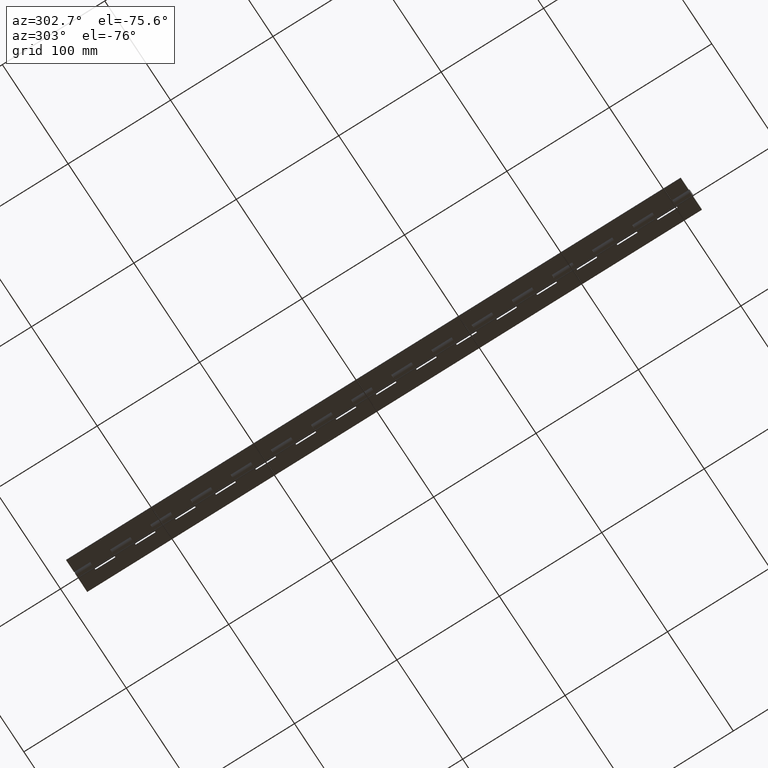
[diagram: clean part render]
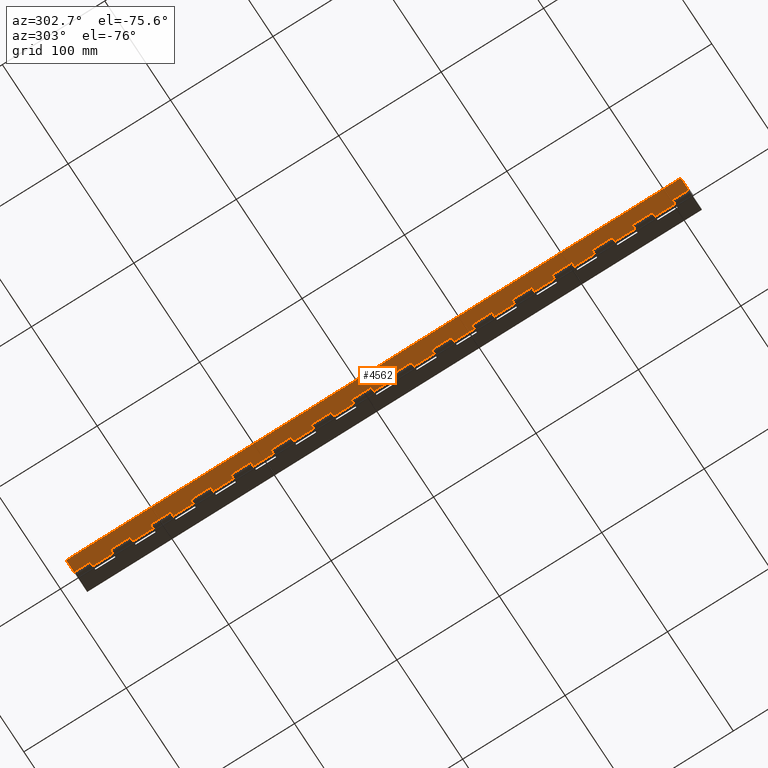
[diagram: same view with one face highlighted and labeled with its STEP entity id]
A machine part, auxiliary view. The second image highlights one B-rep face of the part: STEP entity #4562.
In plain terms, the highlighted planar face has unit normal (0, 0, 1).
Its self-contained STEP definition (entity closure, byte-faithful):
#11 = LINE ( 'NONE', #890, #4144 ) ;
#12 = CARTESIAN_POINT ( 'NONE',  ( 0.0000000000000000000, 509.6000000000000800, -3.350000000000000500 ) ) ;
#31 = VERTEX_POINT ( 'NONE', #4496 ) ;
#59 = DIRECTION ( 'NONE',  ( -0.0000000000000000000, -1.000000000000000000, -0.0000000000000000000 ) ) ;
#66 = CARTESIAN_POINT ( 'NONE',  ( 2.051283388571816900E-016, 584.2000000000000500, -3.350000000000000500 ) ) ;
#80 = ORIENTED_EDGE ( 'NONE', *, *, #2051, .T. ) ;
#115 = CARTESIAN_POINT ( 'NONE',  ( 0.0000000000000000000, 176.4000000000000100, -3.350000000000000500 ) ) ;
#126 = DIRECTION ( 'NONE',  ( 1.000000000000000000, 0.0000000000000000000, -0.0000000000000000000 ) ) ;
#140 = VERTEX_POINT ( 'NONE', #3898 ) ;
#158 = EDGE_CURVE ( 'NONE', #3872, #567, #1415, .T. ) ;
#159 = ORIENTED_EDGE ( 'NONE', *, *, #6578, .T. ) ;
#163 = DIRECTION ( 'NONE',  ( -1.000000000000000000, -0.0000000000000000000, 0.0000000000000000000 ) ) ;
#175 = DIRECTION ( 'NONE',  ( 1.327594496921025700E-016, -1.000000000000000000, 0.0000000000000000000 ) ) ;
#176 = CARTESIAN_POINT ( 'NONE',  ( 0.0000000000000000000, 0.0000000000000000000, -3.350000000000000500 ) ) ;
#190 = CARTESIAN_POINT ( 'NONE',  ( 0.0000000000000000000, 431.2000000000001000, -3.350000000000000500 ) ) ;
#198 = CARTESIAN_POINT ( 'NONE',  ( -3.999999824594459200, 19.60000000000000100, -3.350000000000000500 ) ) ;
#202 = ORIENTED_EDGE ( 'NONE', *, *, #1544, .T. ) ;
#221 = ORIENTED_EDGE ( 'NONE', *, *, #5859, .T. ) ;
#232 = LINE ( 'NONE', #4959, #4205 ) ;
#267 = CARTESIAN_POINT ( 'NONE',  ( -3.999999824594459200, 58.80000000000000400, -3.350000000000000500 ) ) ;
#277 = VECTOR ( 'NONE', #891, 1000.000000000000000 ) ;
#280 = DIRECTION ( 'NONE',  ( 1.327594496921025700E-016, -1.000000000000000000, 0.0000000000000000000 ) ) ;
#291 = VECTOR ( 'NONE', #1523, 1000.000000000000000 ) ;
#297 = ORIENTED_EDGE ( 'NONE', *, *, #2676, .T. ) ;
#320 = VECTOR ( 'NONE', #5203, 1000.000000000000000 ) ;
#326 = CARTESIAN_POINT ( 'NONE',  ( -15.99999982459446300, -15.80000000000000100, -3.350000000000000500 ) ) ;
#329 = EDGE_CURVE ( 'NONE', #5534, #6255, #1657, .T. ) ;
#333 = DIRECTION ( 'NONE',  ( -0.0000000000000000000, -1.000000000000000000, -0.0000000000000000000 ) ) ;
#335 = CARTESIAN_POINT ( 'NONE',  ( -3.999999824594459200, 294.0000000000000600, -3.350000000000000500 ) ) ;
#357 = VERTEX_POINT ( 'NONE', #1597 ) ;
#360 = EDGE_CURVE ( 'NONE', #1417, #5745, #1161, .T. ) ;
#383 = VECTOR ( 'NONE', #1357, 1000.000000000000000 ) ;
#398 = ORIENTED_EDGE ( 'NONE', *, *, #5420, .T. ) ;
#411 = CARTESIAN_POINT ( 'NONE',  ( 0.0000000000000000000, 313.6000000000000200, -3.350000000000000500 ) ) ;
#413 = VECTOR ( 'NONE', #1122, 1000.000000000000000 ) ;
#454 = VERTEX_POINT ( 'NONE', #2677 ) ;
#456 = CARTESIAN_POINT ( 'NONE',  ( 0.0000000000000000000, 98.00000000000002800, -3.350000000000000500 ) ) ;
#463 = CARTESIAN_POINT ( 'NONE',  ( -3.999999824594459200, 19.60000000000000100, -3.350000000000000500 ) ) ;
#524 = VERTEX_POINT ( 'NONE', #3594 ) ;
#529 = ORIENTED_EDGE ( 'NONE', *, *, #2528, .T. ) ;
#531 = DIRECTION ( 'NONE',  ( -1.000000000000000000, -0.0000000000000000000, 0.0000000000000000000 ) ) ;
#543 = CARTESIAN_POINT ( 'NONE',  ( -3.999999824594459200, 411.6000000000000800, -3.350000000000000500 ) ) ;
#560 = VECTOR ( 'NONE', #5678, 1000.000000000000000 ) ;
#567 = VERTEX_POINT ( 'NONE', #3196 ) ;
#571 = DIRECTION ( 'NONE',  ( -1.000000000000000000, 0.0000000000000000000, 0.0000000000000000000 ) ) ;
#619 = LINE ( 'NONE', #2435, #3235 ) ;
#625 = EDGE_CURVE ( 'NONE', #885, #2555, #2138, .T. ) ;
#643 = DIRECTION ( 'NONE',  ( 1.327594496921025700E-016, -1.000000000000000000, 0.0000000000000000000 ) ) ;
#656 = CARTESIAN_POINT ( 'NONE',  ( 0.0000000000000000000, 39.20000000000000300, -3.350000000000000500 ) ) ;
#679 = CARTESIAN_POINT ( 'NONE',  ( -3.999999824594459200, 568.3999999999999800, -3.350000000000000500 ) ) ;
#682 = CARTESIAN_POINT ( 'NONE',  ( -3.999999824594459200, 411.6000000000000800, -3.350000000000000500 ) ) ;
#700 = VECTOR ( 'NONE', #643, 1000.000000000000000 ) ;
#719 = EDGE_CURVE ( 'NONE', #4245, #2703, #5636, .T. ) ;
#733 = CARTESIAN_POINT ( 'NONE',  ( -3.999999824594461900, 584.2000000000000500, -3.350000000000000500 ) ) ;
#753 = EDGE_CURVE ( 'NONE', #2283, #3556, #1324, .T. ) ;
#820 = DIRECTION ( 'NONE',  ( 1.000000000000000000, 0.0000000000000000000, 0.0000000000000000000 ) ) ;
#825 = ORIENTED_EDGE ( 'NONE', *, *, #2624, .T. ) ;
#839 = ORIENTED_EDGE ( 'NONE', *, *, #1232, .T. ) ;
#849 = VECTOR ( 'NONE', #3921, 1000.000000000000000 ) ;
#857 = LINE ( 'NONE', #2228, #6231 ) ;
#865 = EDGE_LOOP ( 'NONE', ( #2234, #297, #2076, #2798, #4185, #900, #3608, #6628, #398, #6485, #3256, #2976, #5659, #2449, #2967, #839, #5577, #1983, #867, #3285, #5237, #1637, #1065, #2984, #5663, #1393, #6084, #529, #2148, #159, #3222, #80, #6464, #1979, #4478, #3776, #202, #6157, #5330, #4105, #6405, #4566, #221, #825, #6151, #5991, #1711, #3567, #1913, #6092, #3068, #5428, #3833, #1092, #4764, #1108, #4327, #1752, #3357, #3091, #5472, #1678, #5904, #953 ) ) ;
#867 = ORIENTED_EDGE ( 'NONE', *, *, #1692, .T. ) ;
#870 = LINE ( 'NONE', #4577, #6082 ) ;
#876 = DIRECTION ( 'NONE',  ( -0.0000000000000000000, -1.000000000000000000, -0.0000000000000000000 ) ) ;
#885 = VERTEX_POINT ( 'NONE', #1661 ) ;
#886 = DIRECTION ( 'NONE',  ( 1.327594496921025700E-016, -1.000000000000000000, 0.0000000000000000000 ) ) ;
#890 = CARTESIAN_POINT ( 'NONE',  ( -3.999999824594461900, 78.40000000000000600, -3.350000000000000500 ) ) ;
#891 = DIRECTION ( 'NONE',  ( 1.327594496921025700E-016, -1.000000000000000000, 0.0000000000000000000 ) ) ;
#900 = ORIENTED_EDGE ( 'NONE', *, *, #625, .T. ) ;
#924 = CARTESIAN_POINT ( 'NONE',  ( 0.0000000000000000000, 568.3999999999999800, -3.350000000000000500 ) ) ;
#946 = VECTOR ( 'NONE', #4701, 1000.000000000000000 ) ;
#953 = ORIENTED_EDGE ( 'NONE', *, *, #4074, .F. ) ;
#964 = VECTOR ( 'NONE', #1337, 1000.000000000000000 ) ;
#965 = DIRECTION ( 'NONE',  ( 1.000000000000000000, 0.0000000000000000000, 0.0000000000000000000 ) ) ;
#970 = CARTESIAN_POINT ( 'NONE',  ( 0.0000000000000000000, 392.0000000000000600, -3.350000000000000500 ) ) ;
#1045 = DIRECTION ( 'NONE',  ( -1.000000000000000000, -0.0000000000000000000, 0.0000000000000000000 ) ) ;
#1051 = CARTESIAN_POINT ( 'NONE',  ( -3.999999824594461900, 235.2000000000000500, -3.350000000000000500 ) ) ;
#1065 = ORIENTED_EDGE ( 'NONE', *, *, #360, .T. ) ;
#1074 = DIRECTION ( 'NONE',  ( 1.000000000000000000, 0.0000000000000000000, 0.0000000000000000000 ) ) ;
#1092 = ORIENTED_EDGE ( 'NONE', *, *, #4757, .T. ) ;
#1095 = VERTEX_POINT ( 'NONE', #2050 ) ;
#1107 = LINE ( 'NONE', #2961, #6635 ) ;
#1108 = ORIENTED_EDGE ( 'NONE', *, *, #329, .T. ) ;
#1110 = CARTESIAN_POINT ( 'NONE',  ( -3.999999824594459200, 333.2000000000000500, -3.350000000000000500 ) ) ;
#1122 = DIRECTION ( 'NONE',  ( -0.0000000000000000000, -1.000000000000000000, -0.0000000000000000000 ) ) ;
#1161 = LINE ( 'NONE', #6295, #3764 ) ;
#1165 = EDGE_CURVE ( 'NONE', #4160, #2283, #5461, .T. ) ;
#1168 = CARTESIAN_POINT ( 'NONE',  ( 0.0000000000000000000, 568.3999999999999800, -3.350000000000000500 ) ) ;
#1195 = DIRECTION ( 'NONE',  ( -1.000000000000000000, -0.0000000000000000000, 0.0000000000000000000 ) ) ;
#1197 = VERTEX_POINT ( 'NONE', #3075 ) ;
#1212 = CARTESIAN_POINT ( 'NONE',  ( -3.999999824594461900, 470.4000000000000900, -3.350000000000000500 ) ) ;
#1216 = CARTESIAN_POINT ( 'NONE',  ( 0.0000000000000000000, 274.4000000000000300, -3.350000000000000500 ) ) ;
#1222 = CARTESIAN_POINT ( 'NONE',  ( -3.999999824594461900, 235.2000000000000500, -3.350000000000000500 ) ) ;
#1232 = EDGE_CURVE ( 'NONE', #4094, #3849, #6352, .T. ) ;
#1258 = CARTESIAN_POINT ( 'NONE',  ( 0.0000000000000000000, 58.79999999999996200, -3.350000000000000500 ) ) ;
#1260 = VERTEX_POINT ( 'NONE', #5863 ) ;
#1263 = VECTOR ( 'NONE', #4414, 1000.000000000000000 ) ;
#1264 = VERTEX_POINT ( 'NONE', #456 ) ;
#1306 = CARTESIAN_POINT ( 'NONE',  ( -3.999999824594461000, -15.80000000000000100, -3.350000000000000500 ) ) ;
#1324 = LINE ( 'NONE', #2162, #2549 ) ;
#1326 = DIRECTION ( 'NONE',  ( 1.000000000000000000, 0.0000000000000000000, 0.0000000000000000000 ) ) ;
#1337 = DIRECTION ( 'NONE',  ( -0.0000000000000000000, -1.000000000000000000, -0.0000000000000000000 ) ) ;
#1357 = DIRECTION ( 'NONE',  ( -0.0000000000000000000, -1.000000000000000000, -0.0000000000000000000 ) ) ;
#1369 = CARTESIAN_POINT ( 'NONE',  ( -3.999999824594459200, 176.4000000000000300, -3.350000000000000500 ) ) ;
#1393 = ORIENTED_EDGE ( 'NONE', *, *, #6245, .T. ) ;
#1399 = CARTESIAN_POINT ( 'NONE',  ( -3.999999824594461900, 392.0000000000000600, -3.350000000000000500 ) ) ;
#1415 = LINE ( 'NONE', #5464, #3683 ) ;
#1417 = VERTEX_POINT ( 'NONE', #6541 ) ;
#1449 = VECTOR ( 'NONE', #4977, 1000.000000000000000 ) ;
#1465 = DIRECTION ( 'NONE',  ( -1.000000000000000000, -0.0000000000000000000, 0.0000000000000000000 ) ) ;
#1474 = VERTEX_POINT ( 'NONE', #4635 ) ;
#1484 = VECTOR ( 'NONE', #1326, 1000.000000000000000 ) ;
#1511 = VERTEX_POINT ( 'NONE', #6119 ) ;
#1523 = DIRECTION ( 'NONE',  ( -0.0000000000000000000, -1.000000000000000000, -0.0000000000000000000 ) ) ;
#1542 = CARTESIAN_POINT ( 'NONE',  ( -3.999999824594459200, 137.2000000000000200, -3.350000000000000500 ) ) ;
#1544 = EDGE_CURVE ( 'NONE', #5453, #2913, #870, .T. ) ;
#1573 = VERTEX_POINT ( 'NONE', #3580 ) ;
#1588 = EDGE_CURVE ( 'NONE', #567, #454, #5766, .T. ) ;
#1597 = CARTESIAN_POINT ( 'NONE',  ( -3.999999824594459200, 98.00000000000001400, -3.350000000000000500 ) ) ;
#1603 = VECTOR ( 'NONE', #3417, 1000.000000000000000 ) ;
#1637 = ORIENTED_EDGE ( 'NONE', *, *, #4091, .T. ) ;
#1656 = LINE ( 'NONE', #3130, #6689 ) ;
#1657 = LINE ( 'NONE', #6498, #6690 ) ;
#1661 = CARTESIAN_POINT ( 'NONE',  ( -3.999999824594461900, 548.8000000000000700, -3.350000000000000500 ) ) ;
#1664 = VERTEX_POINT ( 'NONE', #5718 ) ;
#1673 = VECTOR ( 'NONE', #1074, 1000.000000000000000 ) ;
#1678 = ORIENTED_EDGE ( 'NONE', *, *, #4475, .T. ) ;
#1688 = CARTESIAN_POINT ( 'NONE',  ( -3.999999824594461900, 352.8000000000000700, -3.350000000000000500 ) ) ;
#1692 = EDGE_CURVE ( 'NONE', #1870, #1875, #3880, .T. ) ;
#1703 = EDGE_CURVE ( 'NONE', #5489, #3057, #5261, .T. ) ;
#1706 = EDGE_CURVE ( 'NONE', #2555, #2427, #3712, .T. ) ;
#1711 = ORIENTED_EDGE ( 'NONE', *, *, #6650, .T. ) ;
#1752 = ORIENTED_EDGE ( 'NONE', *, *, #2724, .T. ) ;
#1755 = VERTEX_POINT ( 'NONE', #3681 ) ;
#1764 = CARTESIAN_POINT ( 'NONE',  ( -3.999999824594459200, 137.2000000000000200, -3.350000000000000500 ) ) ;
#1804 = VECTOR ( 'NONE', #876, 1000.000000000000000 ) ;
#1807 = DIRECTION ( 'NONE',  ( -1.000000000000000000, -0.0000000000000000000, 0.0000000000000000000 ) ) ;
#1845 = LINE ( 'NONE', #4164, #3403 ) ;
#1870 = VERTEX_POINT ( 'NONE', #682 ) ;
#1875 = VERTEX_POINT ( 'NONE', #2219 ) ;
#1880 = EDGE_CURVE ( 'NONE', #1664, #3595, #4128, .T. ) ;
#1881 = VERTEX_POINT ( 'NONE', #5866 ) ;
#1887 = VERTEX_POINT ( 'NONE', #4810 ) ;
#1913 = ORIENTED_EDGE ( 'NONE', *, *, #3274, .T. ) ;
#1914 = CARTESIAN_POINT ( 'NONE',  ( -15.99999982459446300, 431.2000000000001000, -3.350000000000000500 ) ) ;
#1923 = CARTESIAN_POINT ( 'NONE',  ( 0.0000000000000000000, 450.8000000000000700, -3.350000000000000500 ) ) ;
#1976 = EDGE_CURVE ( 'NONE', #1755, #5661, #5918, .T. ) ;
#1979 = ORIENTED_EDGE ( 'NONE', *, *, #1588, .T. ) ;
#1982 = CARTESIAN_POINT ( 'NONE',  ( 0.0000000000000000000, 568.3999999999999800, -3.350000000000000500 ) ) ;
#1983 = ORIENTED_EDGE ( 'NONE', *, *, #2950, .T. ) ;
#2018 = CARTESIAN_POINT ( 'NONE',  ( -3.999999824594463700, 0.0000000000000000000, -3.350000000000000500 ) ) ;
#2022 = EDGE_CURVE ( 'NONE', #1573, #4495, #5585, .T. ) ;
#2050 = CARTESIAN_POINT ( 'NONE',  ( -3.999999824594459200, 58.80000000000000400, -3.350000000000000500 ) ) ;
#2051 = EDGE_CURVE ( 'NONE', #1197, #3872, #232, .T. ) ;
#2071 = LINE ( 'NONE', #3415, #849 ) ;
#2076 = ORIENTED_EDGE ( 'NONE', *, *, #6705, .T. ) ;
#2084 = VERTEX_POINT ( 'NONE', #6063 ) ;
#2089 = DIRECTION ( 'NONE',  ( 1.000000000000000000, 0.0000000000000000000, 0.0000000000000000000 ) ) ;
#2094 = EDGE_CURVE ( 'NONE', #1887, #3469, #1107, .T. ) ;
#2095 = CARTESIAN_POINT ( 'NONE',  ( -3.999999824594461900, 196.0000000000000300, -3.350000000000000500 ) ) ;
#2110 = CARTESIAN_POINT ( 'NONE',  ( -3.999999824594459200, 568.3999999999999800, -3.350000000000000500 ) ) ;
#2138 = LINE ( 'NONE', #4398, #4750 ) ;
#2148 = ORIENTED_EDGE ( 'NONE', *, *, #2179, .T. ) ;
#2162 = CARTESIAN_POINT ( 'NONE',  ( -3.999999824594463700, 0.0000000000000000000, -3.350000000000000500 ) ) ;
#2179 = EDGE_CURVE ( 'NONE', #6537, #1881, #5503, .T. ) ;
#2212 = VERTEX_POINT ( 'NONE', #115 ) ;
#2219 = CARTESIAN_POINT ( 'NONE',  ( 0.0000000000000000000, 411.6000000000000800, -3.350000000000000500 ) ) ;
#2222 = VECTOR ( 'NONE', #571, 1000.000000000000000 ) ;
#2228 = CARTESIAN_POINT ( 'NONE',  ( 0.0000000000000000000, 568.3999999999999800, -3.350000000000000500 ) ) ;
#2234 = ORIENTED_EDGE ( 'NONE', *, *, #3343, .F. ) ;
#2235 = VECTOR ( 'NONE', #280, 1000.000000000000000 ) ;
#2259 = EDGE_CURVE ( 'NONE', #2377, #5510, #5001, .T. ) ;
#2264 = VECTOR ( 'NONE', #3687, 1000.000000000000000 ) ;
#2274 = EDGE_CURVE ( 'NONE', #3469, #140, #857, .T. ) ;
#2283 = VERTEX_POINT ( 'NONE', #176 ) ;
#2290 = VERTEX_POINT ( 'NONE', #679 ) ;
#2298 = CARTESIAN_POINT ( 'NONE',  ( -3.999999824594461900, 431.2000000000001000, -3.350000000000000500 ) ) ;
#2322 = LINE ( 'NONE', #6569, #3388 ) ;
#2327 = VERTEX_POINT ( 'NONE', #198 ) ;
#2356 = DIRECTION ( 'NONE',  ( -1.000000000000000000, -0.0000000000000000000, 0.0000000000000000000 ) ) ;
#2377 = VERTEX_POINT ( 'NONE', #4902 ) ;
#2388 = LINE ( 'NONE', #66, #2222 ) ;
#2396 = CARTESIAN_POINT ( 'NONE',  ( -3.999999824594459200, 176.4000000000000300, -3.350000000000000500 ) ) ;
#2404 = EDGE_CURVE ( 'NONE', #1095, #5534, #2659, .T. ) ;
#2410 = LINE ( 'NONE', #1542, #6552 ) ;
#2427 = VERTEX_POINT ( 'NONE', #4440 ) ;
#2433 = VECTOR ( 'NONE', #6262, 1000.000000000000000 ) ;
#2435 = CARTESIAN_POINT ( 'NONE',  ( 0.0000000000000000000, 568.3999999999999800, -3.350000000000000500 ) ) ;
#2449 = ORIENTED_EDGE ( 'NONE', *, *, #5940, .T. ) ;
#2486 = CARTESIAN_POINT ( 'NONE',  ( -3.999999824594461900, 313.6000000000000200, -3.350000000000000500 ) ) ;
#2497 = EDGE_CURVE ( 'NONE', #1264, #524, #2322, .T. ) ;
#2505 = VECTOR ( 'NONE', #5204, 1000.000000000000000 ) ;
#2511 = EDGE_CURVE ( 'NONE', #5745, #6060, #619, .T. ) ;
#2528 = EDGE_CURVE ( 'NONE', #4960, #6537, #5985, .T. ) ;
#2535 = EDGE_CURVE ( 'NONE', #31, #4094, #4441, .T. ) ;
#2539 = LINE ( 'NONE', #463, #5126 ) ;
#2549 = VECTOR ( 'NONE', #2680, 1000.000000000000000 ) ;
#2555 = VERTEX_POINT ( 'NONE', #4203 ) ;
#2558 = CARTESIAN_POINT ( 'NONE',  ( 0.0000000000000000000, 352.8000000000000700, -3.350000000000000500 ) ) ;
#2616 = DIRECTION ( 'NONE',  ( 1.646889375927348500E-016, -1.000000000000000000, 0.0000000000000000000 ) ) ;
#2624 = EDGE_CURVE ( 'NONE', #2212, #4114, #3951, .T. ) ;
#2635 = CARTESIAN_POINT ( 'NONE',  ( 0.0000000000000000000, 568.3999999999999800, -3.350000000000000500 ) ) ;
#2659 = LINE ( 'NONE', #267, #1263 ) ;
#2667 = VERTEX_POINT ( 'NONE', #3878 ) ;
#2676 = EDGE_CURVE ( 'NONE', #4664, #2290, #4993, .T. ) ;
#2677 = CARTESIAN_POINT ( 'NONE',  ( -3.999999824594459200, 254.8000000000000400, -3.350000000000000500 ) ) ;
#2680 = DIRECTION ( 'NONE',  ( -1.000000000000000000, -0.0000000000000000000, -0.0000000000000000000 ) ) ;
#2684 = VECTOR ( 'NONE', #163, 1000.000000000000000 ) ;
#2685 = CARTESIAN_POINT ( 'NONE',  ( 0.0000000000000000000, 568.3999999999999800, -3.350000000000000500 ) ) ;
#2703 = VERTEX_POINT ( 'NONE', #1306 ) ;
#2724 = EDGE_CURVE ( 'NONE', #4169, #2327, #2071, .T. ) ;
#2748 = VECTOR ( 'NONE', #1465, 1000.000000000000000 ) ;
#2757 = CARTESIAN_POINT ( 'NONE',  ( -15.99999982459446300, 509.6000000000000800, -3.350000000000000500 ) ) ;
#2764 = EDGE_CURVE ( 'NONE', #3382, #5453, #5908, .T. ) ;
#2768 = EDGE_CURVE ( 'NONE', #357, #1264, #5746, .T. ) ;
#2791 = CARTESIAN_POINT ( 'NONE',  ( -3.999999824594461900, 196.0000000000000300, -3.350000000000000500 ) ) ;
#2798 = ORIENTED_EDGE ( 'NONE', *, *, #4999, .T. ) ;
#2834 = LINE ( 'NONE', #6101, #5423 ) ;
#2891 = LINE ( 'NONE', #3107, #4096 ) ;
#2894 = CARTESIAN_POINT ( 'NONE',  ( 0.0000000000000000000, 568.3999999999999800, -3.350000000000000500 ) ) ;
#2913 = VERTEX_POINT ( 'NONE', #1222 ) ;
#2950 = EDGE_CURVE ( 'NONE', #5325, #1870, #6054, .T. ) ;
#2961 = CARTESIAN_POINT ( 'NONE',  ( -3.999999824594459200, 215.6000000000000500, -3.350000000000000500 ) ) ;
#2967 = ORIENTED_EDGE ( 'NONE', *, *, #2535, .T. ) ;
#2970 = DIRECTION ( 'NONE',  ( -0.0000000000000000000, -1.000000000000000000, -0.0000000000000000000 ) ) ;
#2976 = ORIENTED_EDGE ( 'NONE', *, *, #3216, .T. ) ;
#2984 = ORIENTED_EDGE ( 'NONE', *, *, #2511, .T. ) ;
#3033 = CARTESIAN_POINT ( 'NONE',  ( -15.99999982459446300, 196.0000000000000600, -3.350000000000000500 ) ) ;
#3054 = VECTOR ( 'NONE', #5667, 1000.000000000000000 ) ;
#3057 = VERTEX_POINT ( 'NONE', #1369 ) ;
#3068 = ORIENTED_EDGE ( 'NONE', *, *, #2768, .T. ) ;
#3075 = CARTESIAN_POINT ( 'NONE',  ( 0.0000000000000000000, 294.0000000000000600, -3.350000000000000500 ) ) ;
#3091 = ORIENTED_EDGE ( 'NONE', *, *, #1165, .T. ) ;
#3094 = CARTESIAN_POINT ( 'NONE',  ( -3.999999824594461900, 274.4000000000000300, -3.350000000000000500 ) ) ;
#3107 = CARTESIAN_POINT ( 'NONE',  ( -15.99999982459446300, 352.8000000000000700, -3.350000000000000500 ) ) ;
#3130 = CARTESIAN_POINT ( 'NONE',  ( -15.99999982459446300, 117.6000000000000400, -3.350000000000000500 ) ) ;
#3138 = CARTESIAN_POINT ( 'NONE',  ( -15.99999982459446300, 78.40000000000002000, -3.350000000000000500 ) ) ;
#3170 = LINE ( 'NONE', #1914, #5763 ) ;
#3188 = FACE_OUTER_BOUND ( 'NONE', #865, .T. ) ;
#3189 = CARTESIAN_POINT ( 'NONE',  ( -3.999999824594459200, 254.8000000000000400, -3.350000000000000500 ) ) ;
#3191 = EDGE_CURVE ( 'NONE', #2427, #4466, #5808, .T. ) ;
#3196 = CARTESIAN_POINT ( 'NONE',  ( -3.999999824594461900, 274.4000000000000300, -3.350000000000000500 ) ) ;
#3205 = LINE ( 'NONE', #4526, #1804 ) ;
#3216 = EDGE_CURVE ( 'NONE', #3911, #1755, #4425, .T. ) ;
#3222 = ORIENTED_EDGE ( 'NONE', *, *, #3542, .T. ) ;
#3235 = VECTOR ( 'NONE', #2970, 1000.000000000000000 ) ;
#3243 = DIRECTION ( 'NONE',  ( 0.0000000000000000000, 0.0000000000000000000, 1.000000000000000000 ) ) ;
#3256 = ORIENTED_EDGE ( 'NONE', *, *, #5369, .T. ) ;
#3257 = EDGE_CURVE ( 'NONE', #6060, #2084, #2891, .T. ) ;
#3274 = EDGE_CURVE ( 'NONE', #3595, #6269, #1656, .T. ) ;
#3285 = ORIENTED_EDGE ( 'NONE', *, *, #5327, .T. ) ;
#3289 = CARTESIAN_POINT ( 'NONE',  ( -3.999999824594461900, 117.6000000000000100, -3.350000000000000500 ) ) ;
#3300 = CARTESIAN_POINT ( 'NONE',  ( 0.0000000000000000000, 235.2000000000000500, -3.350000000000000500 ) ) ;
#3303 = VECTOR ( 'NONE', #4880, 1000.000000000000000 ) ;
#3343 = EDGE_CURVE ( 'NONE', #4664, #2667, #2388, .T. ) ;
#3357 = ORIENTED_EDGE ( 'NONE', *, *, #4152, .T. ) ;
#3358 = DIRECTION ( 'NONE',  ( 1.327594496921025700E-016, -1.000000000000000000, 0.0000000000000000000 ) ) ;
#3365 = DIRECTION ( 'NONE',  ( -1.000000000000000000, -0.0000000000000000000, 0.0000000000000000000 ) ) ;
#3382 = VERTEX_POINT ( 'NONE', #3717 ) ;
#3388 = VECTOR ( 'NONE', #6046, 1000.000000000000000 ) ;
#3392 = CARTESIAN_POINT ( 'NONE',  ( -3.999999824594461900, 588.0000000000001100, -3.350000000000000500 ) ) ;
#3401 = DIRECTION ( 'NONE',  ( -0.0000000000000000000, -1.000000000000000000, -0.0000000000000000000 ) ) ;
#3403 = VECTOR ( 'NONE', #1045, 1000.000000000000000 ) ;
#3415 = CARTESIAN_POINT ( 'NONE',  ( -3.999999824594461900, 39.20000000000000300, -3.350000000000000500 ) ) ;
#3417 = DIRECTION ( 'NONE',  ( 1.327594496921025700E-016, -1.000000000000000000, 0.0000000000000000000 ) ) ;
#3420 = CARTESIAN_POINT ( 'NONE',  ( 0.0000000000000000000, 333.2000000000000500, -3.350000000000000500 ) ) ;
#3469 = VERTEX_POINT ( 'NONE', #4409 ) ;
#3483 = DIRECTION ( 'NONE',  ( 1.000000000000000000, 0.0000000000000000000, 0.0000000000000000000 ) ) ;
#3522 = VECTOR ( 'NONE', #2356, 1000.000000000000000 ) ;
#3528 = LINE ( 'NONE', #335, #5057 ) ;
#3542 = EDGE_CURVE ( 'NONE', #1474, #1197, #3528, .T. ) ;
#3553 = EDGE_CURVE ( 'NONE', #4520, #4960, #6443, .T. ) ;
#3556 = VERTEX_POINT ( 'NONE', #2018 ) ;
#3557 = DIRECTION ( 'NONE',  ( 1.327594496921025700E-016, -1.000000000000000000, 0.0000000000000000000 ) ) ;
#3567 = ORIENTED_EDGE ( 'NONE', *, *, #1880, .T. ) ;
#3580 = CARTESIAN_POINT ( 'NONE',  ( -3.999999824594461900, 509.6000000000000800, -3.350000000000000500 ) ) ;
#3581 = DIRECTION ( 'NONE',  ( -0.0000000000000000000, -1.000000000000000000, -0.0000000000000000000 ) ) ;
#3585 = CARTESIAN_POINT ( 'NONE',  ( 0.0000000000000000000, 548.8000000000000700, -3.350000000000000500 ) ) ;
#3594 = CARTESIAN_POINT ( 'NONE',  ( 0.0000000000000000000, 78.40000000000000600, -3.350000000000000500 ) ) ;
#3595 = VERTEX_POINT ( 'NONE', #5707 ) ;
#3608 = ORIENTED_EDGE ( 'NONE', *, *, #1706, .T. ) ;
#3627 = VECTOR ( 'NONE', #6362, 1000.000000000000000 ) ;
#3681 = CARTESIAN_POINT ( 'NONE',  ( 0.0000000000000000000, 470.4000000000000900, -3.350000000000000500 ) ) ;
#3683 = VECTOR ( 'NONE', #1807, 1000.000000000000000 ) ;
#3687 = DIRECTION ( 'NONE',  ( 1.000000000000000000, 0.0000000000000000000, 0.0000000000000000000 ) ) ;
#3712 = LINE ( 'NONE', #5747, #946 ) ;
#3714 = DIRECTION ( 'NONE',  ( 1.000000000000000000, 0.0000000000000000000, 0.0000000000000000000 ) ) ;
#3717 = CARTESIAN_POINT ( 'NONE',  ( 0.0000000000000000000, 254.8000000000000400, -3.350000000000000500 ) ) ;
#3732 = CARTESIAN_POINT ( 'NONE',  ( -3.999999824594459200, 490.0000000000000600, -3.350000000000000500 ) ) ;
#3764 = VECTOR ( 'NONE', #3857, 1000.000000000000000 ) ;
#3776 = ORIENTED_EDGE ( 'NONE', *, *, #2764, .T. ) ;
#3833 = ORIENTED_EDGE ( 'NONE', *, *, #6111, .T. ) ;
#3849 = VERTEX_POINT ( 'NONE', #190 ) ;
#3857 = DIRECTION ( 'NONE',  ( 1.000000000000000000, 0.0000000000000000000, 0.0000000000000000000 ) ) ;
#3872 = VERTEX_POINT ( 'NONE', #1216 ) ;
#3878 = CARTESIAN_POINT ( 'NONE',  ( -15.99999982459446300, 584.2000000000000500, -3.350000000000000500 ) ) ;
#3880 = LINE ( 'NONE', #543, #2505 ) ;
#3898 = CARTESIAN_POINT ( 'NONE',  ( 0.0000000000000000000, 196.0000000000000300, -3.350000000000000500 ) ) ;
#3911 = VERTEX_POINT ( 'NONE', #6442 ) ;
#3921 = DIRECTION ( 'NONE',  ( 1.327594496921025700E-016, -1.000000000000000000, 0.0000000000000000000 ) ) ;
#3924 = DIRECTION ( 'NONE',  ( -0.0000000000000000000, -1.000000000000000000, -0.0000000000000000000 ) ) ;
#3941 = CARTESIAN_POINT ( 'NONE',  ( -15.99999982459446300, 39.20000000000001000, -3.350000000000000500 ) ) ;
#3951 = LINE ( 'NONE', #5934, #6546 ) ;
#4013 = EDGE_CURVE ( 'NONE', #4190, #885, #6280, .T. ) ;
#4074 = EDGE_CURVE ( 'NONE', #2667, #4245, #3205, .T. ) ;
#4082 = VECTOR ( 'NONE', #3581, 1000.000000000000000 ) ;
#4091 = EDGE_CURVE ( 'NONE', #4916, #1417, #4412, .T. ) ;
#4094 = VERTEX_POINT ( 'NONE', #1923 ) ;
#4096 = VECTOR ( 'NONE', #5178, 1000.000000000000000 ) ;
#4105 = ORIENTED_EDGE ( 'NONE', *, *, #2274, .T. ) ;
#4114 = VERTEX_POINT ( 'NONE', #4550 ) ;
#4128 = LINE ( 'NONE', #1168, #5172 ) ;
#4144 = VECTOR ( 'NONE', #5031, 1000.000000000000000 ) ;
#4148 = CARTESIAN_POINT ( 'NONE',  ( -3.999999824594461900, 392.0000000000000600, -3.350000000000000500 ) ) ;
#4149 = CARTESIAN_POINT ( 'NONE',  ( -15.99999982459446300, -15.80000000000000100, -3.350000000000000500 ) ) ;
#4152 = EDGE_CURVE ( 'NONE', #2327, #4160, #2539, .T. ) ;
#4160 = VERTEX_POINT ( 'NONE', #6171 ) ;
#4164 = CARTESIAN_POINT ( 'NONE',  ( -15.99999982459446300, 392.0000000000000600, -3.350000000000000500 ) ) ;
#4169 = VERTEX_POINT ( 'NONE', #5656 ) ;
#4185 = ORIENTED_EDGE ( 'NONE', *, *, #4013, .T. ) ;
#4190 = VERTEX_POINT ( 'NONE', #3585 ) ;
#4203 = CARTESIAN_POINT ( 'NONE',  ( -3.999999824594459200, 529.2000000000000500, -3.350000000000000500 ) ) ;
#4205 = VECTOR ( 'NONE', #333, 1000.000000000000000 ) ;
#4217 = LINE ( 'NONE', #2396, #1449 ) ;
#4245 = VERTEX_POINT ( 'NONE', #4149 ) ;
#4280 = VECTOR ( 'NONE', #3557, 1000.000000000000000 ) ;
#4327 = ORIENTED_EDGE ( 'NONE', *, *, #6445, .T. ) ;
#4356 = VECTOR ( 'NONE', #820, 1000.000000000000000 ) ;
#4365 = DIRECTION ( 'NONE',  ( -0.0000000000000000000, -1.000000000000000000, -0.0000000000000000000 ) ) ;
#4385 = LINE ( 'NONE', #3732, #5599 ) ;
#4398 = CARTESIAN_POINT ( 'NONE',  ( -3.999999824594461900, 548.8000000000000700, -3.350000000000000500 ) ) ;
#4409 = CARTESIAN_POINT ( 'NONE',  ( 0.0000000000000000000, 215.6000000000000200, -3.350000000000000500 ) ) ;
#4412 = LINE ( 'NONE', #1399, #277 ) ;
#4414 = DIRECTION ( 'NONE',  ( 1.000000000000000000, 0.0000000000000000000, 0.0000000000000000000 ) ) ;
#4425 = LINE ( 'NONE', #6696, #291 ) ;
#4440 = CARTESIAN_POINT ( 'NONE',  ( 0.0000000000000000000, 529.2000000000000500, -3.350000000000000500 ) ) ;
#4441 = LINE ( 'NONE', #6264, #1673 ) ;
#4466 = VERTEX_POINT ( 'NONE', #12 ) ;
#4475 = EDGE_CURVE ( 'NONE', #3556, #2703, #5361, .T. ) ;
#4476 = CARTESIAN_POINT ( 'NONE',  ( -3.999999824594459200, 98.00000000000001400, -3.350000000000000500 ) ) ;
#4478 = ORIENTED_EDGE ( 'NONE', *, *, #5284, .T. ) ;
#4481 = CARTESIAN_POINT ( 'NONE',  ( 0.0000000000000000000, 568.3999999999999800, -3.350000000000000500 ) ) ;
#4495 = VERTEX_POINT ( 'NONE', #4730 ) ;
#4496 = CARTESIAN_POINT ( 'NONE',  ( -3.999999824594459200, 450.8000000000000700, -3.350000000000000500 ) ) ;
#4520 = VERTEX_POINT ( 'NONE', #1110 ) ;
#4526 = CARTESIAN_POINT ( 'NONE',  ( -15.99999982459446300, 568.3999999999999800, -3.350000000000000500 ) ) ;
#4550 = CARTESIAN_POINT ( 'NONE',  ( 0.0000000000000000000, 156.8000000000000100, -3.350000000000000500 ) ) ;
#4552 = LINE ( 'NONE', #2685, #413 ) ;
#4562 = ADVANCED_FACE ( 'NONE', ( #3188 ), #6335, .F. ) ;
#4566 = ORIENTED_EDGE ( 'NONE', *, *, #1703, .T. ) ;
#4577 = CARTESIAN_POINT ( 'NONE',  ( -15.99999982459446300, 235.2000000000000700, -3.350000000000000500 ) ) ;
#4617 = LINE ( 'NONE', #3138, #320 ) ;
#4618 = EDGE_CURVE ( 'NONE', #4114, #2377, #5609, .T. ) ;
#4635 = CARTESIAN_POINT ( 'NONE',  ( -3.999999824594459200, 294.0000000000000600, -3.350000000000000500 ) ) ;
#4664 = VERTEX_POINT ( 'NONE', #733 ) ;
#4696 = LINE ( 'NONE', #3289, #6072 ) ;
#4699 = VECTOR ( 'NONE', #3365, 1000.000000000000000 ) ;
#4701 = DIRECTION ( 'NONE',  ( 1.000000000000000000, 0.0000000000000000000, 0.0000000000000000000 ) ) ;
#4730 = CARTESIAN_POINT ( 'NONE',  ( -3.999999824594459200, 490.0000000000000600, -3.350000000000000500 ) ) ;
#4750 = VECTOR ( 'NONE', #3358, 1000.000000000000000 ) ;
#4757 = EDGE_CURVE ( 'NONE', #1511, #1095, #11, .T. ) ;
#4764 = ORIENTED_EDGE ( 'NONE', *, *, #2404, .T. ) ;
#4810 = CARTESIAN_POINT ( 'NONE',  ( -3.999999824594459200, 215.6000000000000500, -3.350000000000000500 ) ) ;
#4844 = LINE ( 'NONE', #2110, #6228 ) ;
#4867 = LINE ( 'NONE', #3189, #2264 ) ;
#4880 = DIRECTION ( 'NONE',  ( 1.327594496921025700E-016, -1.000000000000000000, 0.0000000000000000000 ) ) ;
#4902 = CARTESIAN_POINT ( 'NONE',  ( -3.999999824594461900, 156.8000000000000100, -3.350000000000000500 ) ) ;
#4916 = VERTEX_POINT ( 'NONE', #4148 ) ;
#4959 = CARTESIAN_POINT ( 'NONE',  ( 0.0000000000000000000, 568.3999999999999800, -3.350000000000000500 ) ) ;
#4960 = VERTEX_POINT ( 'NONE', #3420 ) ;
#4963 = DIRECTION ( 'NONE',  ( 1.000000000000000000, 0.0000000000000000000, 0.0000000000000000000 ) ) ;
#4968 = VECTOR ( 'NONE', #3924, 1000.000000000000000 ) ;
#4973 = DIRECTION ( 'NONE',  ( -1.000000000000000000, -0.0000000000000000000, 0.0000000000000000000 ) ) ;
#4977 = DIRECTION ( 'NONE',  ( 1.000000000000000000, 0.0000000000000000000, 0.0000000000000000000 ) ) ;
#4993 = LINE ( 'NONE', #3392, #2235 ) ;
#4999 = EDGE_CURVE ( 'NONE', #1260, #4190, #6496, .T. ) ;
#5001 = LINE ( 'NONE', #6343, #3627 ) ;
#5024 = DIRECTION ( 'NONE',  ( -1.000000000000000000, -0.0000000000000000000, 0.0000000000000000000 ) ) ;
#5031 = DIRECTION ( 'NONE',  ( 1.327594496921025700E-016, -1.000000000000000000, 0.0000000000000000000 ) ) ;
#5057 = VECTOR ( 'NONE', #4963, 1000.000000000000000 ) ;
#5091 = VECTOR ( 'NONE', #6259, 1000.000000000000000 ) ;
#5096 = EDGE_CURVE ( 'NONE', #140, #5489, #5854, .T. ) ;
#5121 = CARTESIAN_POINT ( 'NONE',  ( -3.999999824594459200, 333.2000000000000500, -3.350000000000000500 ) ) ;
#5126 = VECTOR ( 'NONE', #965, 1000.000000000000000 ) ;
#5172 = VECTOR ( 'NONE', #6374, 1000.000000000000000 ) ;
#5178 = DIRECTION ( 'NONE',  ( -1.000000000000000000, -0.0000000000000000000, 0.0000000000000000000 ) ) ;
#5180 = DIRECTION ( 'NONE',  ( 1.000000000000000000, 0.0000000000000000000, 0.0000000000000000000 ) ) ;
#5203 = DIRECTION ( 'NONE',  ( -1.000000000000000000, -0.0000000000000000000, 0.0000000000000000000 ) ) ;
#5204 = DIRECTION ( 'NONE',  ( 1.000000000000000000, 0.0000000000000000000, 0.0000000000000000000 ) ) ;
#5212 = AXIS2_PLACEMENT_3D ( 'NONE', #6315, #3243, #126 ) ;
#5237 = ORIENTED_EDGE ( 'NONE', *, *, #6096, .T. ) ;
#5251 = EDGE_CURVE ( 'NONE', #2913, #1887, #6408, .T. ) ;
#5261 = LINE ( 'NONE', #2095, #5091 ) ;
#5284 = EDGE_CURVE ( 'NONE', #454, #3382, #4867, .T. ) ;
#5325 = VERTEX_POINT ( 'NONE', #6308 ) ;
#5327 = EDGE_CURVE ( 'NONE', #1875, #6618, #4552, .T. ) ;
#5330 = ORIENTED_EDGE ( 'NONE', *, *, #2094, .T. ) ;
#5354 = CARTESIAN_POINT ( 'NONE',  ( -15.99999982459446300, 156.8000000000000400, -3.350000000000000500 ) ) ;
#5361 = LINE ( 'NONE', #6249, #6261 ) ;
#5369 = EDGE_CURVE ( 'NONE', #4495, #3911, #4385, .T. ) ;
#5420 = EDGE_CURVE ( 'NONE', #4466, #1573, #5434, .T. ) ;
#5423 = VECTOR ( 'NONE', #886, 1000.000000000000000 ) ;
#5428 = ORIENTED_EDGE ( 'NONE', *, *, #2497, .T. ) ;
#5434 = LINE ( 'NONE', #2757, #2684 ) ;
#5438 = CARTESIAN_POINT ( 'NONE',  ( 0.0000000000000000000, 372.4000000000000900, -3.350000000000000500 ) ) ;
#5453 = VERTEX_POINT ( 'NONE', #3300 ) ;
#5461 = LINE ( 'NONE', #1982, #4082 ) ;
#5464 = CARTESIAN_POINT ( 'NONE',  ( -15.99999982459446300, 274.4000000000000300, -3.350000000000000500 ) ) ;
#5472 = ORIENTED_EDGE ( 'NONE', *, *, #753, .T. ) ;
#5489 = VERTEX_POINT ( 'NONE', #2791 ) ;
#5503 = LINE ( 'NONE', #5603, #2748 ) ;
#5510 = VERTEX_POINT ( 'NONE', #1764 ) ;
#5534 = VERTEX_POINT ( 'NONE', #1258 ) ;
#5577 = ORIENTED_EDGE ( 'NONE', *, *, #5902, .T. ) ;
#5585 = LINE ( 'NONE', #6508, #1603 ) ;
#5599 = VECTOR ( 'NONE', #3714, 1000.000000000000000 ) ;
#5603 = CARTESIAN_POINT ( 'NONE',  ( -15.99999982459446300, 313.6000000000000200, -3.350000000000000500 ) ) ;
#5609 = LINE ( 'NONE', #5354, #6173 ) ;
#5636 = LINE ( 'NONE', #326, #1484 ) ;
#5656 = CARTESIAN_POINT ( 'NONE',  ( -3.999999824594461900, 39.20000000000000300, -3.350000000000000500 ) ) ;
#5659 = ORIENTED_EDGE ( 'NONE', *, *, #1976, .T. ) ;
#5661 = VERTEX_POINT ( 'NONE', #1212 ) ;
#5663 = ORIENTED_EDGE ( 'NONE', *, *, #3257, .T. ) ;
#5667 = DIRECTION ( 'NONE',  ( -0.0000000000000000000, -1.000000000000000000, -0.0000000000000000000 ) ) ;
#5668 = DIRECTION ( 'NONE',  ( 1.000000000000000000, 0.0000000000000000000, 0.0000000000000000000 ) ) ;
#5678 = DIRECTION ( 'NONE',  ( 1.327594496921025700E-016, -1.000000000000000000, 0.0000000000000000000 ) ) ;
#5707 = CARTESIAN_POINT ( 'NONE',  ( 0.0000000000000000000, 117.6000000000000100, -3.350000000000000500 ) ) ;
#5718 = CARTESIAN_POINT ( 'NONE',  ( 0.0000000000000000000, 137.1999999999999900, -3.350000000000000500 ) ) ;
#5745 = VERTEX_POINT ( 'NONE', #5438 ) ;
#5746 = LINE ( 'NONE', #4476, #4356 ) ;
#5747 = CARTESIAN_POINT ( 'NONE',  ( -3.999999824594459200, 529.2000000000000500, -3.350000000000000500 ) ) ;
#5763 = VECTOR ( 'NONE', #5024, 1000.000000000000000 ) ;
#5766 = LINE ( 'NONE', #3094, #560 ) ;
#5808 = LINE ( 'NONE', #924, #3054 ) ;
#5822 = VECTOR ( 'NONE', #59, 1000.000000000000000 ) ;
#5828 = LINE ( 'NONE', #2486, #4280 ) ;
#5854 = LINE ( 'NONE', #3033, #6169 ) ;
#5859 = EDGE_CURVE ( 'NONE', #3057, #2212, #4217, .T. ) ;
#5863 = CARTESIAN_POINT ( 'NONE',  ( -1.734723475976807100E-015, 568.3999999999999800, -3.350000000000000500 ) ) ;
#5866 = CARTESIAN_POINT ( 'NONE',  ( -3.999999824594461900, 313.6000000000000200, -3.350000000000000500 ) ) ;
#5872 = CARTESIAN_POINT ( 'NONE',  ( -3.999999824594461900, 117.6000000000000100, -3.350000000000000500 ) ) ;
#5873 = DIRECTION ( 'NONE',  ( -0.0000000000000000000, -1.000000000000000000, -0.0000000000000000000 ) ) ;
#5902 = EDGE_CURVE ( 'NONE', #3849, #5325, #3170, .T. ) ;
#5904 = ORIENTED_EDGE ( 'NONE', *, *, #719, .F. ) ;
#5908 = LINE ( 'NONE', #2894, #383 ) ;
#5918 = LINE ( 'NONE', #6470, #4699 ) ;
#5934 = CARTESIAN_POINT ( 'NONE',  ( 0.0000000000000000000, 568.3999999999999800, -3.350000000000000500 ) ) ;
#5940 = EDGE_CURVE ( 'NONE', #5661, #31, #2834, .T. ) ;
#5985 = LINE ( 'NONE', #2635, #5822 ) ;
#5991 = ORIENTED_EDGE ( 'NONE', *, *, #2259, .T. ) ;
#6017 = CARTESIAN_POINT ( 'NONE',  ( -15.99999982459446300, 548.8000000000000700, -3.350000000000000500 ) ) ;
#6046 = DIRECTION ( 'NONE',  ( -0.0000000000000000000, -1.000000000000000000, -0.0000000000000000000 ) ) ;
#6054 = LINE ( 'NONE', #2298, #3303 ) ;
#6060 = VERTEX_POINT ( 'NONE', #2558 ) ;
#6063 = CARTESIAN_POINT ( 'NONE',  ( -3.999999824594461900, 352.8000000000000700, -3.350000000000000500 ) ) ;
#6072 = VECTOR ( 'NONE', #175, 1000.000000000000000 ) ;
#6082 = VECTOR ( 'NONE', #6658, 1000.000000000000000 ) ;
#6084 = ORIENTED_EDGE ( 'NONE', *, *, #3553, .T. ) ;
#6092 = ORIENTED_EDGE ( 'NONE', *, *, #6268, .T. ) ;
#6096 = EDGE_CURVE ( 'NONE', #6618, #4916, #1845, .T. ) ;
#6101 = CARTESIAN_POINT ( 'NONE',  ( -3.999999824594461900, 470.4000000000000900, -3.350000000000000500 ) ) ;
#6111 = EDGE_CURVE ( 'NONE', #524, #1511, #4617, .T. ) ;
#6119 = CARTESIAN_POINT ( 'NONE',  ( -3.999999824594461900, 78.40000000000000600, -3.350000000000000500 ) ) ;
#6122 = VECTOR ( 'NONE', #5668, 1000.000000000000000 ) ;
#6151 = ORIENTED_EDGE ( 'NONE', *, *, #4618, .T. ) ;
#6157 = ORIENTED_EDGE ( 'NONE', *, *, #5251, .T. ) ;
#6169 = VECTOR ( 'NONE', #6647, 1000.000000000000000 ) ;
#6171 = CARTESIAN_POINT ( 'NONE',  ( 0.0000000000000000000, 19.59999999999995200, -3.350000000000000500 ) ) ;
#6173 = VECTOR ( 'NONE', #1195, 1000.000000000000000 ) ;
#6228 = VECTOR ( 'NONE', #2089, 1000.000000000000000 ) ;
#6231 = VECTOR ( 'NONE', #5873, 1000.000000000000000 ) ;
#6235 = LINE ( 'NONE', #1688, #700 ) ;
#6245 = EDGE_CURVE ( 'NONE', #2084, #4520, #6235, .T. ) ;
#6249 = CARTESIAN_POINT ( 'NONE',  ( -3.999999824594463700, 0.0000000000000000000, -3.350000000000000500 ) ) ;
#6255 = VERTEX_POINT ( 'NONE', #656 ) ;
#6259 = DIRECTION ( 'NONE',  ( 1.327594496921025700E-016, -1.000000000000000000, 0.0000000000000000000 ) ) ;
#6261 = VECTOR ( 'NONE', #2616, 1000.000000000000000 ) ;
#6262 = DIRECTION ( 'NONE',  ( 1.327594496921025700E-016, -1.000000000000000000, 0.0000000000000000000 ) ) ;
#6264 = CARTESIAN_POINT ( 'NONE',  ( -3.999999824594459200, 450.8000000000000700, -3.350000000000000500 ) ) ;
#6268 = EDGE_CURVE ( 'NONE', #6269, #357, #4696, .T. ) ;
#6269 = VERTEX_POINT ( 'NONE', #5872 ) ;
#6280 = LINE ( 'NONE', #6017, #3522 ) ;
#6295 = CARTESIAN_POINT ( 'NONE',  ( -3.999999824594459200, 372.4000000000000900, -3.350000000000000500 ) ) ;
#6308 = CARTESIAN_POINT ( 'NONE',  ( -3.999999824594461900, 431.2000000000001000, -3.350000000000000500 ) ) ;
#6309 = VECTOR ( 'NONE', #4973, 1000.000000000000000 ) ;
#6315 = CARTESIAN_POINT ( 'NONE',  ( -15.99999982459446300, 568.3999999999999800, -3.350000000000000500 ) ) ;
#6335 = PLANE ( 'NONE',  #5212 ) ;
#6343 = CARTESIAN_POINT ( 'NONE',  ( -3.999999824594461900, 156.8000000000000100, -3.350000000000000500 ) ) ;
#6352 = LINE ( 'NONE', #6479, #4968 ) ;
#6362 = DIRECTION ( 'NONE',  ( 1.327594496921025700E-016, -1.000000000000000000, 0.0000000000000000000 ) ) ;
#6374 = DIRECTION ( 'NONE',  ( -0.0000000000000000000, -1.000000000000000000, -0.0000000000000000000 ) ) ;
#6405 = ORIENTED_EDGE ( 'NONE', *, *, #5096, .T. ) ;
#6408 = LINE ( 'NONE', #1051, #2433 ) ;
#6442 = CARTESIAN_POINT ( 'NONE',  ( 0.0000000000000000000, 490.0000000000000600, -3.350000000000000500 ) ) ;
#6443 = LINE ( 'NONE', #5121, #6122 ) ;
#6445 = EDGE_CURVE ( 'NONE', #6255, #4169, #6471, .T. ) ;
#6464 = ORIENTED_EDGE ( 'NONE', *, *, #158, .T. ) ;
#6470 = CARTESIAN_POINT ( 'NONE',  ( -15.99999982459446300, 470.4000000000000900, -3.350000000000000500 ) ) ;
#6471 = LINE ( 'NONE', #3941, #6309 ) ;
#6479 = CARTESIAN_POINT ( 'NONE',  ( 0.0000000000000000000, 568.3999999999999800, -3.350000000000000500 ) ) ;
#6485 = ORIENTED_EDGE ( 'NONE', *, *, #2022, .T. ) ;
#6496 = LINE ( 'NONE', #4481, #964 ) ;
#6498 = CARTESIAN_POINT ( 'NONE',  ( 0.0000000000000000000, 568.3999999999999800, -3.350000000000000500 ) ) ;
#6508 = CARTESIAN_POINT ( 'NONE',  ( -3.999999824594461900, 509.6000000000000800, -3.350000000000000500 ) ) ;
#6537 = VERTEX_POINT ( 'NONE', #411 ) ;
#6541 = CARTESIAN_POINT ( 'NONE',  ( -3.999999824594459200, 372.4000000000000900, -3.350000000000000500 ) ) ;
#6546 = VECTOR ( 'NONE', #4365, 1000.000000000000000 ) ;
#6552 = VECTOR ( 'NONE', #5180, 1000.000000000000000 ) ;
#6569 = CARTESIAN_POINT ( 'NONE',  ( 0.0000000000000000000, 568.3999999999999800, -3.350000000000000500 ) ) ;
#6578 = EDGE_CURVE ( 'NONE', #1881, #1474, #5828, .T. ) ;
#6618 = VERTEX_POINT ( 'NONE', #970 ) ;
#6628 = ORIENTED_EDGE ( 'NONE', *, *, #3191, .T. ) ;
#6635 = VECTOR ( 'NONE', #3483, 1000.000000000000000 ) ;
#6647 = DIRECTION ( 'NONE',  ( -1.000000000000000000, -0.0000000000000000000, 0.0000000000000000000 ) ) ;
#6650 = EDGE_CURVE ( 'NONE', #5510, #1664, #2410, .T. ) ;
#6658 = DIRECTION ( 'NONE',  ( -1.000000000000000000, -0.0000000000000000000, 0.0000000000000000000 ) ) ;
#6689 = VECTOR ( 'NONE', #531, 1000.000000000000000 ) ;
#6690 = VECTOR ( 'NONE', #3401, 1000.000000000000000 ) ;
#6696 = CARTESIAN_POINT ( 'NONE',  ( 0.0000000000000000000, 568.3999999999999800, -3.350000000000000500 ) ) ;
#6705 = EDGE_CURVE ( 'NONE', #2290, #1260, #4844, .T. ) ;